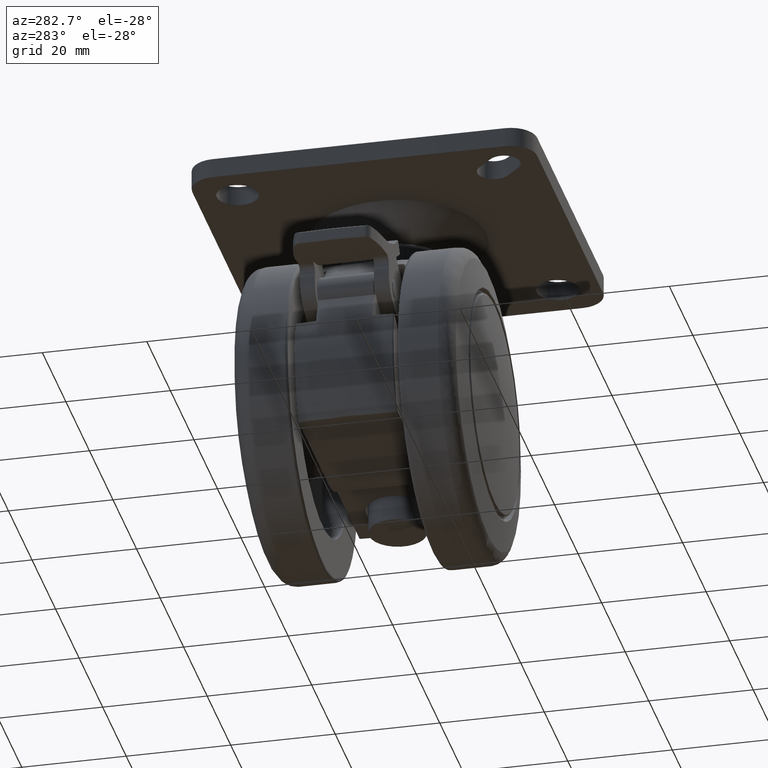
[diagram: clean part render]
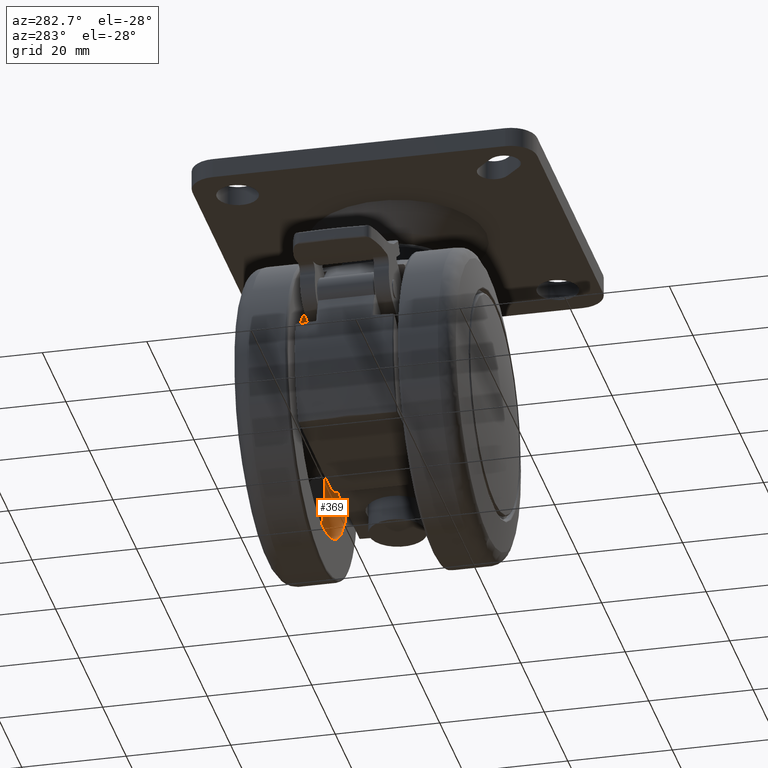
[diagram: same view with one face highlighted and labeled with its STEP entity id]
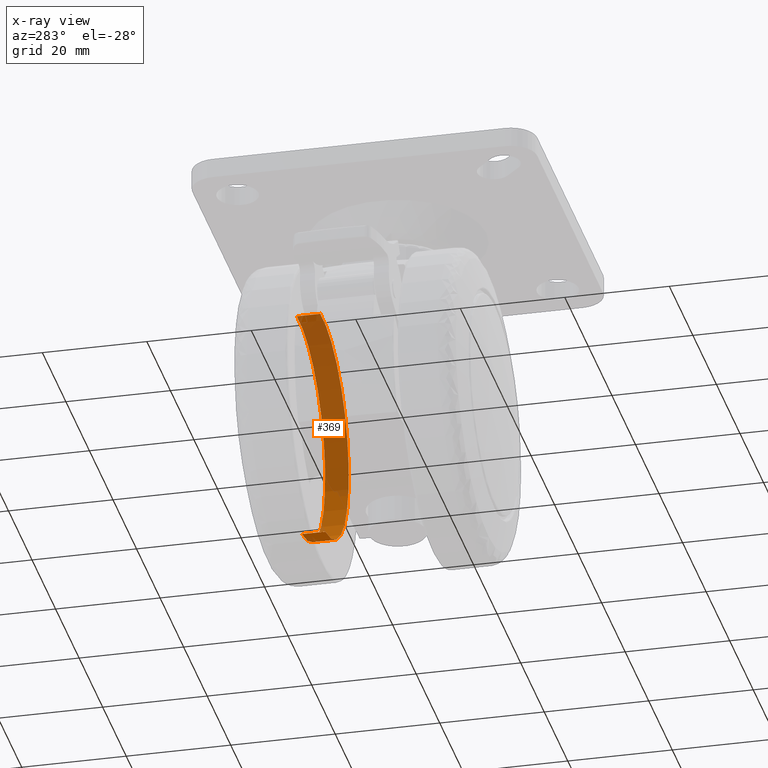
[diagram: x-ray of the same camera — body ghosted, the highlighted face saturated]
A machine part, auxiliary view. The second image highlights one B-rep face of the part: STEP entity #369.
The next image is the same camera in x-ray: the body ghosted, the highlighted face saturated — about 78% of this face is hidden behind the body in this view.
In plain terms, the highlighted cylindrical surface (partial cylindrical patch) has radius 22 mm, axis along (-0, -1, 0).
Its self-contained STEP definition (entity closure, byte-faithful):
#369=ADVANCED_FACE('',(#2184),#2183,.F.);
#2183=CYLINDRICAL_SURFACE('',#6823,2.20000000000E+01);
#2184=FACE_OUTER_BOUND('',#6824,.T.);
#6820=CARTESIAN_POINT('',(0.00000000000E+00,0.00000000000E+00,1.65000009537E+00));
#6821=DIRECTION('',(-0.00000000000E+00,0.00000000000E+00,-1.00000000000E+00));
#6822=DIRECTION('',(-1.00000000000E+00,-0.00000000000E+00,-0.00000000000E+00));
#6823=AXIS2_PLACEMENT_3D('',#6820,#6821,#6822);
#6824=EDGE_LOOP('',(#8231,#8232,#8233,#8234));
#8231=ORIENTED_EDGE('',*,*,#8824,.F.);
#8232=ORIENTED_EDGE('',*,*,#8890,.F.);
#8233=ORIENTED_EDGE('',*,*,#8892,.T.);
#8234=ORIENTED_EDGE('',*,*,#8891,.T.);
#8824=EDGE_CURVE('',#11346,#11345,#11353,.T.);
#8890=EDGE_CURVE('',#11780,#11346,#11787,.T.);
#8891=EDGE_CURVE('',#11779,#11345,#11793,.T.);
#8892=EDGE_CURVE('',#11780,#11779,#11799,.T.);
#11345=VERTEX_POINT('',#14577);
#11346=VERTEX_POINT('',#14578);
#11353=CIRCLE('',#14586,2.20000000000E+01);
#11779=VERTEX_POINT('',#14852);
#11780=VERTEX_POINT('',#14853);
#11787=(BOUNDED_CURVE() B_SPLINE_CURVE(1,(#14858,#14859),.UNSPECIFIED.,.F.,.F.) B_SPLINE_CURVE_WITH_KNOTS((2,2),(8.33333313467E-02,9.16666670832E-01),.UNSPECIFIED.) CURVE() GEOMETRIC_REPRESENTATION_ITEM() RATIONAL_B_SPLINE_CURVE((1.00000000000E+00,1.00000000000E+00)) REPRESENTATION_ITEM('') );
#11793=(BOUNDED_CURVE() B_SPLINE_CURVE(1,(#14860,#14861),.UNSPECIFIED.,.F.,.F.) B_SPLINE_CURVE_WITH_KNOTS((2,2),(8.33333333333E-02,9.16666666667E-01),.UNSPECIFIED.) CURVE() GEOMETRIC_REPRESENTATION_ITEM() RATIONAL_B_SPLINE_CURVE((7.50000000000E-01,7.50000000000E-01)) REPRESENTATION_ITEM('') );
#11799=CIRCLE('',#14865,2.20000000000E+01);
#14577=CARTESIAN_POINT('',(2.20000000000E+01,0.00000000000E+00,0.00000000000E+00));
#14578=CARTESIAN_POINT('',(-2.20000000000E+01,1.18423789293E-15,0.00000000000E+00));
#14583=CARTESIAN_POINT('',(0.00000000000E+00,0.00000000000E+00,0.00000000000E+00));
#14584=DIRECTION('',(-0.00000000000E+00,0.00000000000E+00,1.00000000000E+00));
#14585=DIRECTION('',(1.00000000000E+00,-1.22460635382E-16,0.00000000000E+00));
#14586=AXIS2_PLACEMENT_3D('',#14583,#14584,#14585);
#14852=CARTESIAN_POINT('',(2.20000000000E+01,0.00000000000E+00,4.50000000000E+00));
#14853=CARTESIAN_POINT('',(-2.20000000000E+01,1.18423789293E-15,4.50000000000E+00));
#14858=CARTESIAN_POINT('',(-2.20000000000E+01,0.00000000000E+00,4.50000001073E+00));
#14859=CARTESIAN_POINT('',(-2.20000000000E+01,0.00000000000E+00,-2.24925899572E-08));
#14860=CARTESIAN_POINT('',(2.20000000000E+01,0.00000000000E+00,4.50000000000E+00));
#14861=CARTESIAN_POINT('',(2.20000000000E+01,0.00000000000E+00,-2.22044604925E-16));
#14862=CARTESIAN_POINT('',(0.00000000000E+00,0.00000000000E+00,4.50000000000E+00));
#14863=DIRECTION('',(-0.00000000000E+00,0.00000000000E+00,1.00000000000E+00));
#14864=DIRECTION('',(1.00000000000E+00,-1.22460635382E-16,0.00000000000E+00));
#14865=AXIS2_PLACEMENT_3D('',#14862,#14863,#14864);